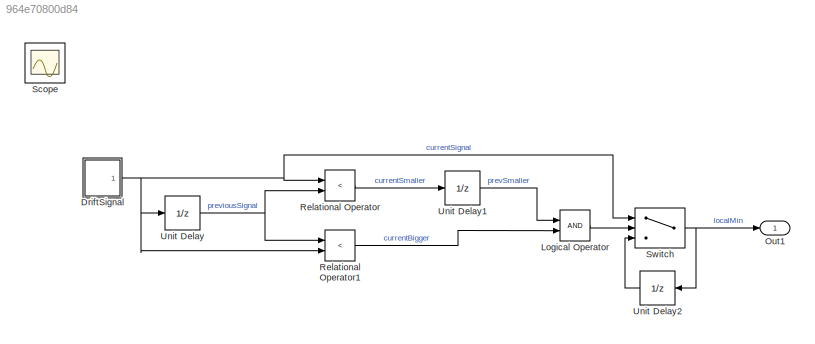
MODEL slx_964e70800d84
KIND model
CONFIG AbsTol = auto
CONFIG EnableMultiTasking = on
CONFIG FixedStep = auto
CONFIG MaxStep = auto
CONFIG MinStep = auto
CONFIG RelTol = 1e-3
CONFIG SampleTimeConstraint = Unconstrained
CONFIG Solver = VariableStepDiscrete
CONFIG SolverName = VariableStepDiscrete
CONFIG StartTime = 0.0
CONFIG StopTime = 100
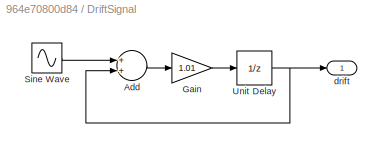
BLOCK [SubSystem] DriftSignal
  Ports = [0, 1]
  RequestExecContextInheritance = off
  SystemSampleTime = 1
  TreatAsAtomicUnit = on
BLOCK [Sum] DriftSignal/Add
  InputSameDT = off
  OutDataTypeStr = Inherit: Inherit via internal rule
  Ports = [2, 1]
  SaturateOnIntegerOverflow = off
BLOCK [Gain] DriftSignal/Gain
  Gain = 1.01
  OutDataTypeStr = Inherit: Inherit via internal rule
  ParamDataTypeStr = Inherit: Inherit via internal rule
  SaturateOnIntegerOverflow = off
BLOCK [Sin] DriftSignal/Sine Wave
  Frequency = 2*pi/10.3
  Ports = [0, 1]
  SampleTime = 1
BLOCK [UnitDelay] DriftSignal/Unit Delay
  InputProcessing = Elements as channels (sample based)
BLOCK [Outport] DriftSignal/drift
  IconDisplay = Port number
BLOCK [Logic] Logical Operator
  AllPortsSameDT = off
  OutDataTypeStr = boolean
  Ports = [2, 1]
BLOCK [Outport] Out1
  IconDisplay = Port number
BLOCK [RelationalOperator] Relational Operator
  InputSameDT = off
  Operator = <
  OutDataTypeStr = boolean
  Ports = [2, 1]
BLOCK [RelationalOperator] Relational Operator1
  InputSameDT = off
  Operator = <
  OutDataTypeStr = boolean
  Ports = [2, 1]
BLOCK [Scope] Scope
  Floating = off
  IOType = viewer
  NumInputPorts = 1
  Ports = []
  ScopeSpecificationString = Simulink.scopes.TimeScopeBlockCfg('CurrentConfiguration', extmgr.ConfigurationSet(extmgr.Configuration('Core','General UI',true),extmgr.Configuration('Core','Source UI',true),extmgr.Configuration('Sources','WiredSimulink',true,'DataLoggingMaxPoints','7500','DataLoggingLimitDataPoints',true,'DataLoggingSaveFormat','Array','DataLoggingDecimation','1','DataLoggingDecimateData',true),extmgr.Configurat...<+2076ch>
BLOCK [Switch] Switch
  Criteria = u2 ~= 0
  InputSameDT = off
  SaturateOnIntegerOverflow = off
BLOCK [UnitDelay] Unit Delay
  InputProcessing = Elements as channels (sample based)
  SampleTime = -1
BLOCK [UnitDelay] Unit Delay1
  InputProcessing = Elements as channels (sample based)
BLOCK [UnitDelay] Unit Delay2
  InputProcessing = Elements as channels (sample based)
LINE DriftSignal/Add:1 -> DriftSignal/Gain:1
LINE DriftSignal/Gain:1 -> DriftSignal/Unit Delay:1
LINE DriftSignal/Sine Wave:1 -> DriftSignal/Add:1
NET DriftSignal/Unit Delay:1 -> DriftSignal/Add:2, DriftSignal/drift:1
NET DriftSignal:1 -> Relational Operator1:2, Relational Operator:1, Switch:1, Unit Delay:1
LINE Logical Operator:1 -> Switch:2
LINE Relational Operator1:1 -> Logical Operator:2
LINE Relational Operator:1 -> Unit Delay1:1
NET Switch:1 -> Out1:1, Unit Delay2:1
LINE Unit Delay1:1 -> Logical Operator:1
LINE Unit Delay2:1 -> Switch:3
NET Unit Delay:1 -> Relational Operator1:1, Relational Operator:2
note: NET lines group one-source signal fan-out (src -> all destinations, sorted); 1:1 wires keep LINE
